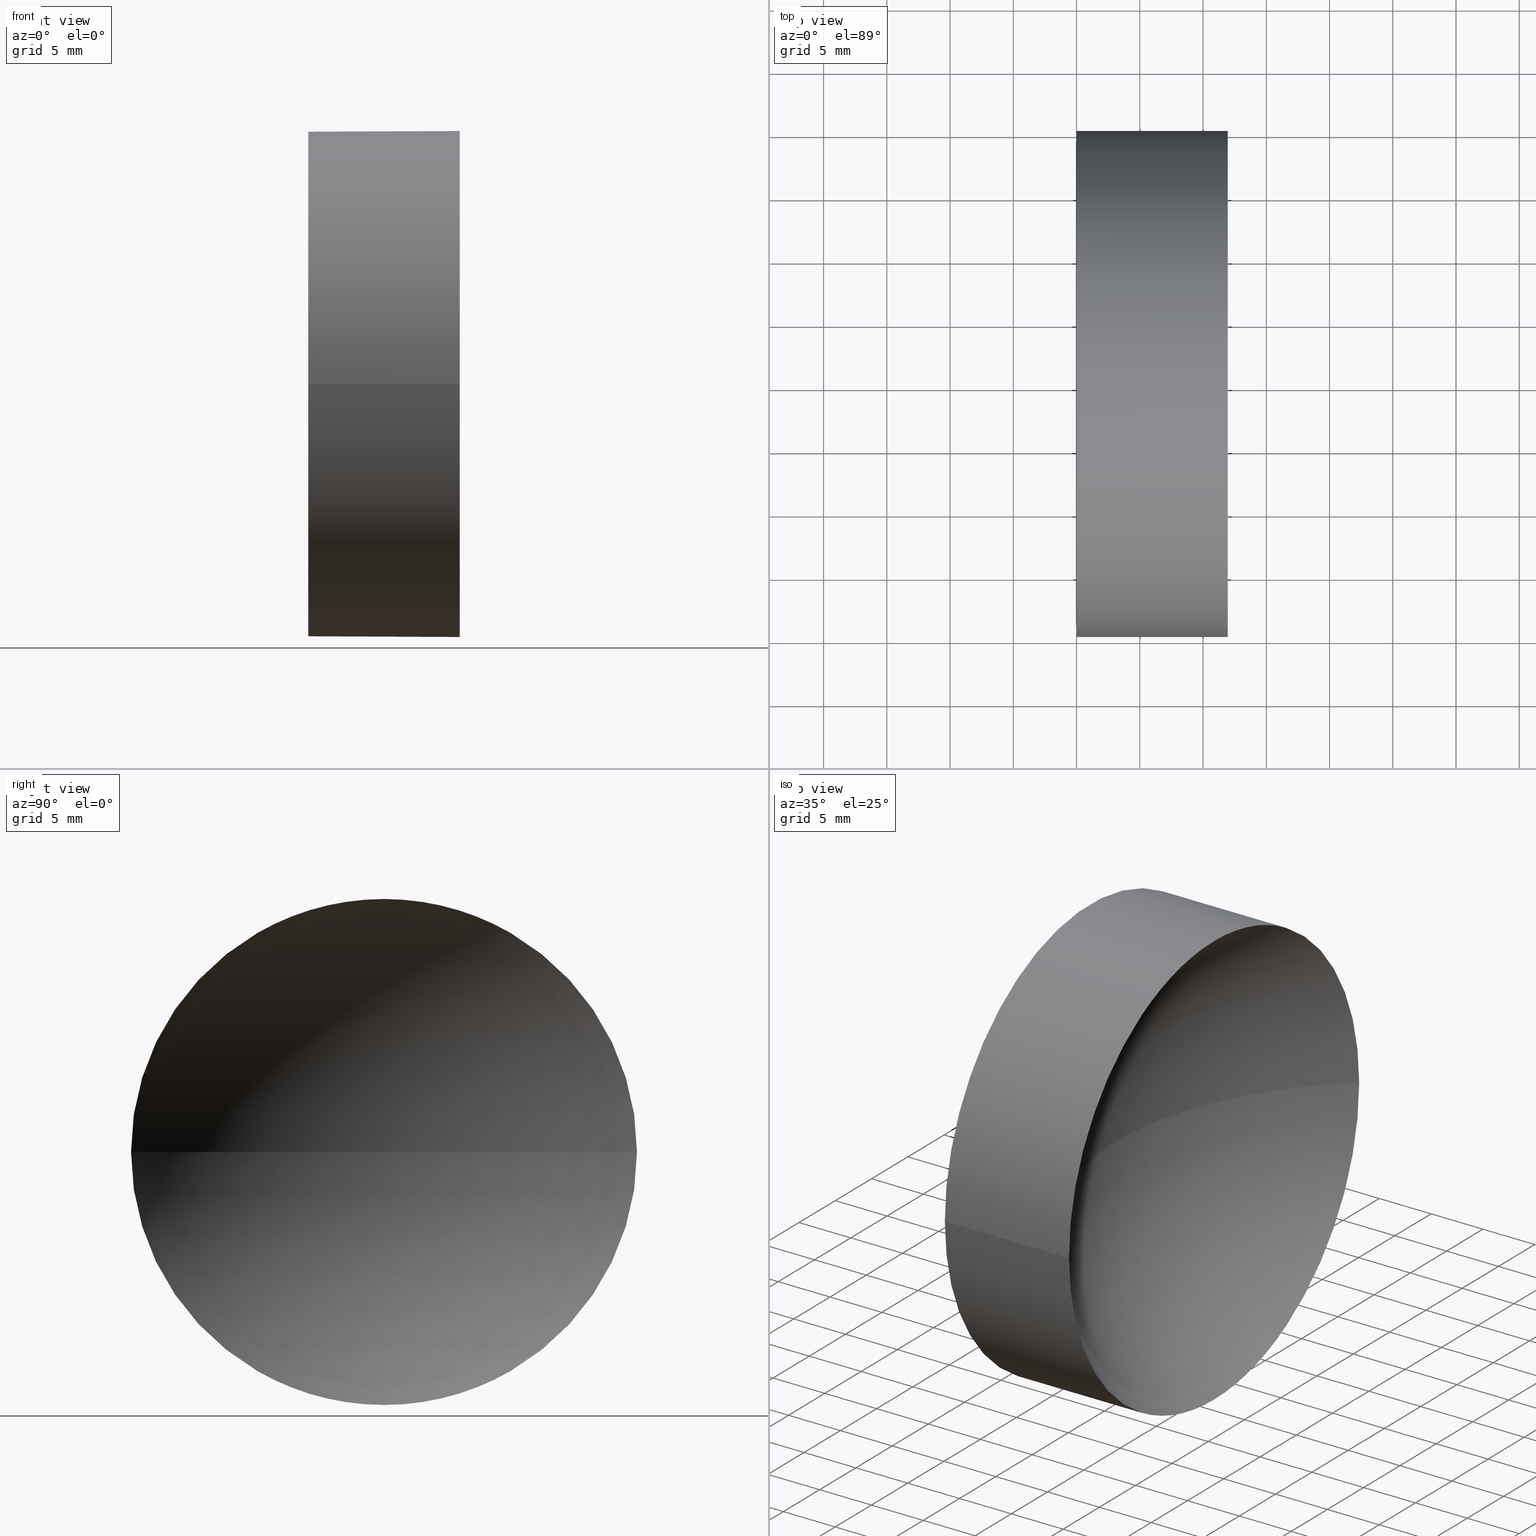
[diagram: canonical four-view strip — front | top / right | iso, engineering-drawing reading convention]
A machine part, canonical four-view strip (front | top / right | iso — engineering-drawing reading convention). The complete STEP part file that produces these views, byte-faithful:
ISO-10303-21;
HEADER;
FILE_DESCRIPTION (( 'STEP AP214' ),
    '1' );
FILE_NAME ('120164.STEP',
    '2019-06-21T02:12:49',
    ( '' ),
    ( '' ),
    'SwSTEP 2.0',
    'SolidWorks 2016',
    '' );
FILE_SCHEMA (( 'AUTOMOTIVE_DESIGN' ));
ENDSEC;

DATA;
#1 = AXIS2_PLACEMENT_3D ( 'NONE', #26, #116, #37 ) ;
#2 = DIRECTION ( 'NONE',  ( -1.000000000000000000, 6.488933942079480100E-016, -0.0000000000000000000 ) ) ;
#3 = DIRECTION ( 'NONE',  ( -1.000000000000000000, 6.488933942079480100E-016, -0.0000000000000000000 ) ) ;
#4 = ORIENTED_EDGE ( 'NONE', *, *, #109, .T. ) ;
#5 = VERTEX_POINT ( 'NONE', #89 ) ;
#6 = UNCERTAINTY_MEASURE_WITH_UNIT (LENGTH_MEASURE( 1.000000000000000100E-005 ), #31, 'distance_accuracy_value', 'NONE');
#7 =( NAMED_UNIT ( * ) PLANE_ANGLE_UNIT ( ) SI_UNIT ( $, .RADIAN. ) );
#8 = DIRECTION ( 'NONE',  ( 0.0000000000000000000, -1.000000000000000000, 0.0000000000000000000 ) ) ;
#9 = DIRECTION ( 'NONE',  ( 0.0000000000000000000, 0.0000000000000000000, 1.000000000000000000 ) ) ;
#10 = CIRCLE ( 'NONE', #156, 25.84000000000000300 ) ;
#11 = STYLED_ITEM ( 'NONE', ( #29 ), #98 ) ;
#12 = ORIENTED_EDGE ( 'NONE', *, *, #75, .T. ) ;
#13 = APPLICATION_CONTEXT ( 'automotive_design' ) ;
#14 = ADVANCED_FACE ( 'NONE', ( #163 ), #119, .F. ) ;
#15 = ORIENTED_EDGE ( 'NONE', *, *, #107, .F. ) ;
#16 = AXIS2_PLACEMENT_3D ( 'NONE', #99, #111, #79 ) ;
#17 = CARTESIAN_POINT ( 'NONE',  ( 126.9537358582576400, 65.15745182658618300, 0.0000000000000000000 ) ) ;
#18 = LINE ( 'NONE', #145, #125 ) ;
#19 = DIRECTION ( 'NONE',  ( 0.0000000000000000000, -1.000000000000000000, 0.0000000000000000000 ) ) ;
#20 = CYLINDRICAL_SURFACE ( 'NONE', #16, 20.00000000000001100 ) ;
#21 = CARTESIAN_POINT ( 'NONE',  ( 126.9537358582576400, 65.15745182658618300, 0.0000000000000000000 ) ) ;
#22 = DIRECTION ( 'NONE',  ( 0.0000000000000000000, 0.0000000000000000000, 1.000000000000000000 ) ) ;
#23 = AXIS2_PLACEMENT_3D ( 'NONE', #51, #152, #66 ) ;
#24 = CARTESIAN_POINT ( 'NONE',  ( 126.9537358582576400, 45.15745182658619700, 0.0000000000000000000 ) ) ;
#25 = DIRECTION ( 'NONE',  ( -6.938893903907227400E-016, -1.000000000000000000, 0.0000000000000000000 ) ) ;
#26 = CARTESIAN_POINT ( 'NONE',  ( 114.9754472601862100, 65.15745182658619700, 0.0000000000000000000 ) ) ;
#27 = CIRCLE ( 'NONE', #133, 20.00000000000000400 ) ;
#28 = COLOUR_RGB ( '',1.000000000000000000, 1.000000000000000000, 1.000000000000000000 ) ;
#29 = PRESENTATION_STYLE_ASSIGNMENT (( #59 ) ) ;
#30 = VERTEX_POINT ( 'NONE', #24 ) ;
#31 =( LENGTH_UNIT ( ) NAMED_UNIT ( * ) SI_UNIT ( .MILLI., .METRE. ) );
#32 = FILL_AREA_STYLE ('',( #56 ) ) ;
#33 = PRODUCT_CONTEXT ( 'NONE', #13, 'mechanical' ) ;
#34 = STYLED_ITEM ( 'NONE', ( #153 ), #134 ) ;
#35 = ORIENTED_EDGE ( 'NONE', *, *, #93, .F. ) ;
#36 = UNCERTAINTY_MEASURE_WITH_UNIT (LENGTH_MEASURE( 1.000000000000000100E-005 ), #155, 'distance_accuracy_value', 'NONE');
#37 = DIRECTION ( 'NONE',  ( -6.938893903907227400E-016, -1.000000000000000000, 0.0000000000000000000 ) ) ;
#38 = CARTESIAN_POINT ( 'NONE',  ( 143.3154472601862300, 65.15745182658621100, 0.0000000000000000000 ) ) ;
#39 = EDGE_CURVE ( 'NONE', #91, #102, #18, .T. ) ;
#40 = DIRECTION ( 'NONE',  ( -1.074132183267372700E-015, -1.000000000000000000, 0.0000000000000000000 ) ) ;
#41 =( GEOMETRIC_REPRESENTATION_CONTEXT ( 3 ) GLOBAL_UNCERTAINTY_ASSIGNED_CONTEXT ( ( #36 ) ) GLOBAL_UNIT_ASSIGNED_CONTEXT ( ( #155, #43, #70 ) ) REPRESENTATION_CONTEXT ( 'NONE', 'WORKASPACE' ) );
#42 = ORIENTED_EDGE ( 'NONE', *, *, #109, .F. ) ;
#43 =( NAMED_UNIT ( * ) PLANE_ANGLE_UNIT ( ) SI_UNIT ( $, .RADIAN. ) );
#44 = FACE_OUTER_BOUND ( 'NONE', #108, .T. ) ;
#45 = APPLICATION_PROTOCOL_DEFINITION ( 'draft international standard', 'automotive_design', 1998, #13 ) ;
#46 =( NAMED_UNIT ( * ) SI_UNIT ( $, .STERADIAN. ) SOLID_ANGLE_UNIT ( ) );
#47 = ORIENTED_EDGE ( 'NONE', *, *, #93, .T. ) ;
#48 = EDGE_CURVE ( 'NONE', #91, #30, #49, .T. ) ;
#49 = CIRCLE ( 'NONE', #143, 20.00000000000001800 ) ;
#50 = ORIENTED_EDGE ( 'NONE', *, *, #82, .T. ) ;
#51 = CARTESIAN_POINT ( 'NONE',  ( 114.9754472601862300, 65.15745182658619700, 0.0000000000000000000 ) ) ;
#52 = DIRECTION ( 'NONE',  ( 0.0000000000000000000, -1.000000000000000000, -1.224646799147353200E-016 ) ) ;
#53 = EDGE_LOOP ( 'NONE', ( #58, #159, #4, #15 ) ) ;
#54 = EDGE_CURVE ( 'NONE', #91, #74, #10, .T. ) ;
#55 = FILL_AREA_STYLE ('',( #95 ) ) ;
#56 = FILL_AREA_STYLE_COLOUR ( '', #28 ) ;
#57 = SURFACE_STYLE_USAGE ( .BOTH. , #138 ) ;
#58 = ORIENTED_EDGE ( 'NONE', *, *, #39, .F. ) ;
#59 = SURFACE_STYLE_USAGE ( .BOTH. , #72 ) ;
#60 = CYLINDRICAL_SURFACE ( 'NONE', #105, 20.00000000000001100 ) ;
#61 = PRODUCT_DEFINITION_FORMATION_WITH_SPECIFIED_SOURCE ( '�κ�', '', #157, .NOT_KNOWN. ) ;
#62 = CIRCLE ( 'NONE', #161, 25.84000000000000300 ) ;
#63 = VECTOR ( 'NONE', #3, 1000.000000000000000 ) ;
#64 = CARTESIAN_POINT ( 'NONE',  ( 143.3154472601862300, 65.15745182658621100, 0.0000000000000000000 ) ) ;
#65 = DIRECTION ( 'NONE',  ( -1.000000000000000000, 6.488933942079480100E-016, -0.0000000000000000000 ) ) ;
#66 = DIRECTION ( 'NONE',  ( 6.488933942079480100E-016, 1.000000000000000000, 0.0000000000000000000 ) ) ;
#67 = LINE ( 'NONE', #88, #63 ) ;
#68 = PRODUCT_RELATED_PRODUCT_CATEGORY ( 'part', '', ( #157 ) ) ;
#69 = UNCERTAINTY_MEASURE_WITH_UNIT (LENGTH_MEASURE( 1.000000000000000100E-005 ), #146, 'distance_accuracy_value', 'NONE');
#70 =( NAMED_UNIT ( * ) SI_UNIT ( $, .STERADIAN. ) SOLID_ANGLE_UNIT ( ) );
#71 = DIRECTION ( 'NONE',  ( 1.000000000000000000, 0.0000000000000000000, 0.0000000000000000000 ) ) ;
#72 = SURFACE_SIDE_STYLE ('',( #164 ) ) ;
#73 = MECHANICAL_DESIGN_GEOMETRIC_PRESENTATION_REPRESENTATION (  '', ( #34 ), #148 ) ;
#74 = VERTEX_POINT ( 'NONE', #101 ) ;
#75 = EDGE_CURVE ( 'NONE', #30, #74, #62, .T. ) ;
#76 =( NAMED_UNIT ( * ) SI_UNIT ( $, .STERADIAN. ) SOLID_ANGLE_UNIT ( ) );
#77 = ADVANCED_FACE ( 'NONE', ( #129 ), #20, .T. ) ;
#78 = ORIENTED_EDGE ( 'NONE', *, *, #107, .T. ) ;
#79 = DIRECTION ( 'NONE',  ( -6.938893903907224400E-016, -1.000000000000000000, 0.0000000000000000000 ) ) ;
#80 = PRESENTATION_LAYER_ASSIGNMENT (  '', '', ( #11 ) ) ;
#81 = ORIENTED_EDGE ( 'NONE', *, *, #54, .T. ) ;
#82 = EDGE_CURVE ( 'NONE', #5, #102, #127, .T. ) ;
#83 = FACE_OUTER_BOUND ( 'NONE', #86, .T. ) ;
#84 =( NAMED_UNIT ( * ) PLANE_ANGLE_UNIT ( ) SI_UNIT ( $, .RADIAN. ) );
#85 = SURFACE_STYLE_FILL_AREA ( #32 ) ;
#86 = EDGE_LOOP ( 'NONE', ( #47, #154, #142, #42 ) ) ;
#87 = ADVANCED_FACE ( 'NONE', ( #90 ), #135, .F. ) ;
#88 = CARTESIAN_POINT ( 'NONE',  ( 110.0147892488423500, 45.15745182658618300, 0.0000000000000000000 ) ) ;
#89 = CARTESIAN_POINT ( 'NONE',  ( 114.9754472601862000, 45.15745182658619000, 0.0000000000000000000 ) ) ;
#90 = FACE_OUTER_BOUND ( 'NONE', #120, .T. ) ;
#91 = VERTEX_POINT ( 'NONE', #103 ) ;
#92 = AXIS2_PLACEMENT_3D ( 'NONE', #21, #149, #8 ) ;
#93 = EDGE_CURVE ( 'NONE', #30, #91, #104, .T. ) ;
#94 = DIRECTION ( 'NONE',  ( 0.0000000000000000000, 0.0000000000000000000, 1.000000000000000000 ) ) ;
#95 = FILL_AREA_STYLE_COLOUR ( '', #96 ) ;
#96 = COLOUR_RGB ( '',1.000000000000000000, 1.000000000000000000, 1.000000000000000000 ) ;
#97 = PRESENTATION_LAYER_ASSIGNMENT (  '', '', ( #34 ) ) ;
#98 = ADVANCED_BREP_SHAPE_REPRESENTATION ( '120164', ( #134, #121 ), #158 ) ;
#99 = CARTESIAN_POINT ( 'NONE',  ( 110.0147892488423600, 65.15745182658619700, 0.0000000000000000000 ) ) ;
#100 = DIRECTION ( 'NONE',  ( -1.000000000000000000, 6.488933942079480100E-016, -0.0000000000000000000 ) ) ;
#101 = CARTESIAN_POINT ( 'NONE',  ( 117.4754472601862400, 65.15745182658622500, 0.0000000000000000000 ) ) ;
#102 = VERTEX_POINT ( 'NONE', #113 ) ;
#103 = CARTESIAN_POINT ( 'NONE',  ( 126.9537358582576400, 85.15745182658621100, 2.449293598294705700E-015 ) ) ;
#104 = CIRCLE ( 'NONE', #92, 20.00000000000001800 ) ;
#105 = AXIS2_PLACEMENT_3D ( 'NONE', #137, #100, #132 ) ;
#106 = ORIENTED_EDGE ( 'NONE', *, *, #75, .F. ) ;
#107 = EDGE_CURVE ( 'NONE', #102, #5, #27, .T. ) ;
#108 = EDGE_LOOP ( 'NONE', ( #150, #81, #106 ) ) ;
#109 = EDGE_CURVE ( 'NONE', #30, #5, #67, .T. ) ;
#110 = SPHERICAL_SURFACE ( 'NONE', #112, 25.84000000000000300 ) ;
#111 = DIRECTION ( 'NONE',  ( -1.000000000000000000, 6.488933942079480100E-016, -0.0000000000000000000 ) ) ;
#112 = AXIS2_PLACEMENT_3D ( 'NONE', #160, #9, #40 ) ;
#113 = CARTESIAN_POINT ( 'NONE',  ( 114.9754472601862300, 85.15745182658619700, 2.449293598294710100E-015 ) ) ;
#114 = DIRECTION ( 'NONE',  ( -1.074132183267372700E-015, -1.000000000000000000, 0.0000000000000000000 ) ) ;
#115 = ORIENTED_EDGE ( 'NONE', *, *, #54, .F. ) ;
#116 = DIRECTION ( 'NONE',  ( -1.000000000000000000, 6.488933942079480100E-016, -0.0000000000000000000 ) ) ;
#117 = DIRECTION ( 'NONE',  ( 0.0000000000000000000, -0.0000000000000000000, -1.000000000000000000 ) ) ;
#118 = PRODUCT_DEFINITION_CONTEXT ( 'detailed design', #124, 'design' ) ;
#119 = SPHERICAL_SURFACE ( 'NONE', #123, 25.84000000000000300 ) ;
#120 = EDGE_LOOP ( 'NONE', ( #50, #78 ) ) ;
#121 = AXIS2_PLACEMENT_3D ( 'NONE', #122, #94, #71 ) ;
#122 = CARTESIAN_POINT ( 'NONE',  ( 0.0000000000000000000, 0.0000000000000000000, 0.0000000000000000000 ) ) ;
#123 = AXIS2_PLACEMENT_3D ( 'NONE', #64, #22, #114 ) ;
#124 = APPLICATION_CONTEXT ( 'automotive_design' ) ;
#125 = VECTOR ( 'NONE', #151, 1000.000000000000000 ) ;
#126 = PRODUCT_DEFINITION ( 'δ֪', '', #61, #118 ) ;
#127 = CIRCLE ( 'NONE', #1, 20.00000000000000400 ) ;
#128 = CLOSED_SHELL ( 'NONE', ( #139, #140, #14, #77, #87 ) ) ;
#129 = FACE_OUTER_BOUND ( 'NONE', #53, .T. ) ;
#130 = CARTESIAN_POINT ( 'NONE',  ( 143.3154472601862300, 65.15745182658621100, 0.0000000000000000000 ) ) ;
#131 = EDGE_LOOP ( 'NONE', ( #115, #35, #12 ) ) ;
#132 = DIRECTION ( 'NONE',  ( -6.938893903907224400E-016, -1.000000000000000000, 0.0000000000000000000 ) ) ;
#133 = AXIS2_PLACEMENT_3D ( 'NONE', #162, #65, #25 ) ;
#134 = MANIFOLD_SOLID_BREP ( '��ת1', #128 ) ;
#135 = PLANE ( 'NONE',  #23 ) ;
#136 = DIRECTION ( 'NONE',  ( -1.000000000000000000, 0.0000000000000000000, 0.0000000000000000000 ) ) ;
#137 = CARTESIAN_POINT ( 'NONE',  ( 110.0147892488423600, 65.15745182658619700, 0.0000000000000000000 ) ) ;
#138 = SURFACE_SIDE_STYLE ('',( #85 ) ) ;
#139 = ADVANCED_FACE ( 'NONE', ( #83 ), #60, .T. ) ;
#140 = ADVANCED_FACE ( 'NONE', ( #44 ), #110, .F. ) ;
#141 = MECHANICAL_DESIGN_GEOMETRIC_PRESENTATION_REPRESENTATION (  '', ( #11 ), #41 ) ;
#142 = ORIENTED_EDGE ( 'NONE', *, *, #82, .F. ) ;
#143 = AXIS2_PLACEMENT_3D ( 'NONE', #17, #2, #19 ) ;
#144 = SHAPE_DEFINITION_REPRESENTATION ( #165, #98 ) ;
#145 = CARTESIAN_POINT ( 'NONE',  ( 110.0147892488423800, 85.15745182658621100, 2.449293598294708100E-015 ) ) ;
#146 =( LENGTH_UNIT ( ) NAMED_UNIT ( * ) SI_UNIT ( .MILLI., .METRE. ) );
#147 = DIRECTION ( 'NONE',  ( -7.946652182046252500E-032, -1.224646799147353200E-016, 1.000000000000000000 ) ) ;
#148 =( GEOMETRIC_REPRESENTATION_CONTEXT ( 3 ) GLOBAL_UNCERTAINTY_ASSIGNED_CONTEXT ( ( #69 ) ) GLOBAL_UNIT_ASSIGNED_CONTEXT ( ( #146, #7, #76 ) ) REPRESENTATION_CONTEXT ( 'NONE', 'WORKASPACE' ) );
#149 = DIRECTION ( 'NONE',  ( -1.000000000000000000, 6.488933942079480100E-016, -0.0000000000000000000 ) ) ;
#150 = ORIENTED_EDGE ( 'NONE', *, *, #48, .F. ) ;
#151 = DIRECTION ( 'NONE',  ( -1.000000000000000000, 6.488933942079480100E-016, -0.0000000000000000000 ) ) ;
#152 = DIRECTION ( 'NONE',  ( 1.000000000000000000, -6.488933942079480100E-016, 0.0000000000000000000 ) ) ;
#153 = PRESENTATION_STYLE_ASSIGNMENT (( #57 ) ) ;
#154 = ORIENTED_EDGE ( 'NONE', *, *, #39, .T. ) ;
#155 =( LENGTH_UNIT ( ) NAMED_UNIT ( * ) SI_UNIT ( .MILLI., .METRE. ) );
#156 = AXIS2_PLACEMENT_3D ( 'NONE', #130, #147, #52 ) ;
#157 = PRODUCT ( '120164', '120164', '', ( #33 ) ) ;
#158 =( GEOMETRIC_REPRESENTATION_CONTEXT ( 3 ) GLOBAL_UNCERTAINTY_ASSIGNED_CONTEXT ( ( #6 ) ) GLOBAL_UNIT_ASSIGNED_CONTEXT ( ( #31, #84, #46 ) ) REPRESENTATION_CONTEXT ( 'NONE', 'WORKASPACE' ) );
#159 = ORIENTED_EDGE ( 'NONE', *, *, #48, .T. ) ;
#160 = CARTESIAN_POINT ( 'NONE',  ( 143.3154472601862300, 65.15745182658621100, 0.0000000000000000000 ) ) ;
#161 = AXIS2_PLACEMENT_3D ( 'NONE', #38, #117, #136 ) ;
#162 = CARTESIAN_POINT ( 'NONE',  ( 114.9754472601862100, 65.15745182658619700, 0.0000000000000000000 ) ) ;
#163 = FACE_OUTER_BOUND ( 'NONE', #131, .T. ) ;
#164 = SURFACE_STYLE_FILL_AREA ( #55 ) ;
#165 = PRODUCT_DEFINITION_SHAPE ( 'NONE', 'NONE',  #126 ) ;
#166 = APPLICATION_PROTOCOL_DEFINITION ( 'draft international standard', 'automotive_design', 1998, #124 ) ;
ENDSEC;
END-ISO-10303-21;
